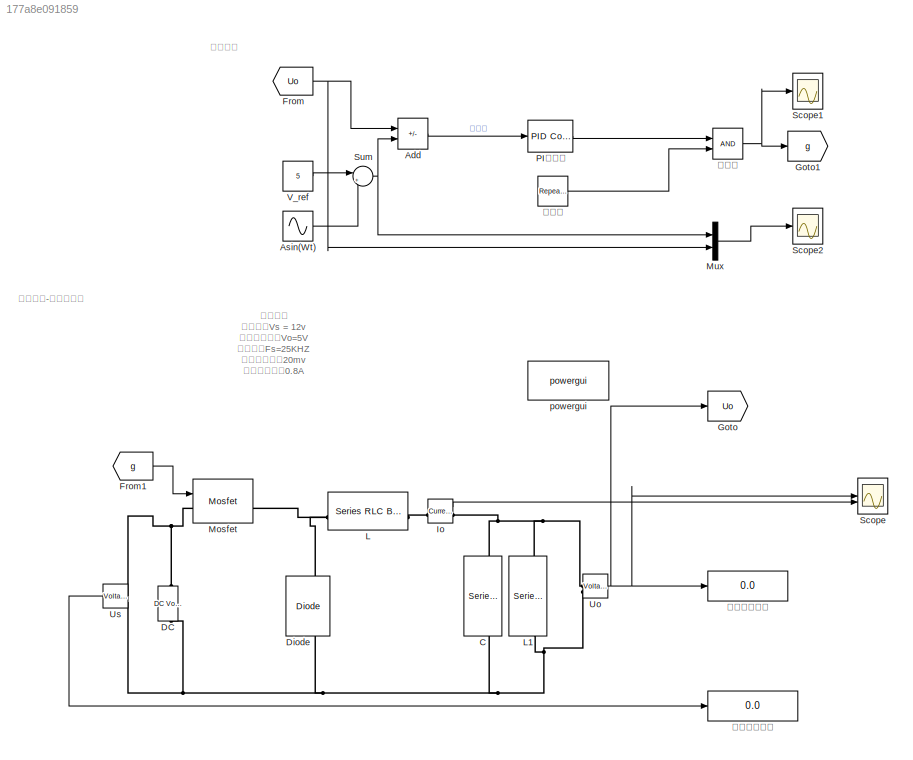
MODEL slx_177a8e091859
KIND model
CONFIG AbsTol = auto
CONFIG EnableMultiTasking = off
CONFIG FixedStep = auto
CONFIG MaxStep = auto
CONFIG MinStep = auto
CONFIG RelTol = 1e-3
CONFIG SampleTimeConstraint = Unconstrained
CONFIG SolverName = VariableStepAuto
CONFIG StartTime = 0.0
CONFIG StopTime = 0.01
BLOCK [Sum] Add
  IconShape = rectangular
  Inputs = -+
BLOCK [Sin] Asin(Wt) 
  Amplitude = 0.1
  Frequency = 1000
  SampleTime = 0
BLOCK [Reference] C  REF=spsSeriesRLCBranchLib/Series RLC Branch
  NameLocation = left
  SourceBlock = spsSeriesRLCBranchLib/Series RLC Branch
  SourceType = Series RLC Branch
BLOCK [Reference] DC  REF=spsDCVoltageSourceLib/DC Voltage Source
  SourceBlock = spsDCVoltageSourceLib/DC Voltage Source
  SourceType = DC Voltage Source
BLOCK [Reference] Diode  REF=spsDiodeLib/Diode
  NameLocation = right
  SourceBlock = spsDiodeLib/Diode
  SourceType = Diode
BLOCK [From] From
  GotoTag = Uo
BLOCK [From] From1
  GotoTag = g
BLOCK [Goto] Goto
  GotoTag = Uo
BLOCK [Goto] Goto1
  GotoTag = g
BLOCK [Reference] Io  REF=spsCurrentMeasurementLib/Current Measurement
  SourceBlock = spsCurrentMeasurementLib/Current Measurement
  SourceType = Current Measurement
  UserDataPersistent = on
BLOCK [Reference] L  REF=spsSeriesRLCBranchLib/Series RLC Branch
  SourceBlock = spsSeriesRLCBranchLib/Series RLC Branch
  SourceType = Series RLC Branch
BLOCK [Reference] L1  REF=spsSeriesRLCBranchLib/Series RLC Branch
  NameLocation = left
  SourceBlock = spsSeriesRLCBranchLib/Series RLC Branch
  SourceType = Series RLC Branch
BLOCK [Reference] Mosfet  REF=spsMosfetLib/Mosfet
  LibrarySourceBlock = sps_lib/Power Electronics/Mosfet
  SourceBlock = spsMosfetLib/Mosfet
  SourceType = Mosfet
BLOCK [Mux] Mux
  DisplayOption = bar
  Inputs = 2
BLOCK [Reference] PI控制器  REF=slpidlib/PID Controller
  SourceBlock = slpidlib/PID Controller
  SourceType = PID 1dof
BLOCK [Scope] Scope
  Floating = off
  NumInputPorts = 2
  ScopeSpecificationString = Simulink.scopes.TimeScopeBlockCfg('CurrentConfiguration', extmgr.ConfigurationSet(extmgr.Configuration('Core','General UI',true,'FigureColor',[1 1 1],'DisplayFullSourceName',true),extmgr.Configuration('Core','Source UI',true),extmgr.Configuration('Sources','WiredSimulink',true,'DataLoggingVariableName','ScopeData1','SampleTime','0'),extmgr.Configuration('Visuals','Time Domain',true,'SerializedDisp...<+2795ch>
BLOCK [Scope] Scope1
  Floating = off
  NumInputPorts = 1
  ScopeSpecificationString = Simulink.scopes.TimeScopeBlockCfg('CurrentConfiguration', extmgr.ConfigurationSet(extmgr.Configuration('Core','General UI',true,'FigureColor',[1 1 1],'DisplayFullSourceName',true),extmgr.Configuration('Core','Source UI',true),extmgr.Configuration('Sources','WiredSimulink',true,'DataLoggingVariableName','ScopeData1','SampleTime','0'),extmgr.Configuration('Visuals','Time Domain',true,'SerializedDisp...<+2711ch>
BLOCK [Scope] Scope2
  Floating = off
  NumInputPorts = 1
  ScopeSpecificationString = Simulink.scopes.TimeScopeBlockCfg('CurrentConfiguration', extmgr.ConfigurationSet(extmgr.Configuration('Core','General UI',true,'FigureColor',[1 1 1],'DisplayFullSourceName',true),extmgr.Configuration('Core','Source UI',true),extmgr.Configuration('Sources','WiredSimulink',true,'DataLoggingVariableName','ScopeData2','SampleTime','0'),extmgr.Configuration('Visuals','Time Domain',true,'SerializedDisp...<+2744ch>
BLOCK [Sum] Sum
  Inputs = |++
BLOCK [Reference] Uo  REF=spsVoltageMeasurementLib/Voltage Measurement
  SourceBlock = spsVoltageMeasurementLib/Voltage Measurement
  SourceType = Voltage Measurement
  UserDataPersistent = on
BLOCK [Reference] Us  REF=spsVoltageMeasurementLib/Voltage Measurement
  NameLocation = left
  SourceBlock = spsVoltageMeasurementLib/Voltage Measurement
  SourceType = Voltage Measurement
  UserDataPersistent = on
BLOCK [Constant] V_ref
  Value = 5
BLOCK [Reference] powergui  REF=sps_lib/powergui
  LibrarySourceBlock = sps_lib/powergui
  Priority = 1
  SourceBlock = sps_lib/powergui
  SourceType = PSB option menu block
BLOCK [Reference] 三角波  REF=simulink/Sources/Repeating
Sequence
  SourceBlock = simulink/Sources/Repeating\nSequence
  SourceType = Repeating table
BLOCK [RelationalOperator] 比较器
  InputSameDT = off
  OutDataTypeStr = boolean
  RndMeth = Simplest
BLOCK [Display] 直流输入电压
  Decimation = 1
BLOCK [Display] 直流输出电压
  Decimation = 1
ANNOTATION (root): 设计要求 输入电压Vs = 12v 输出电压等于Vo=5V 开关频率Fs=25KHZ 电容电压波动20mv 电感电流波动0.8A
ANNOTATION (root): 控制回路
ANNOTATION (root): 控制对象-主拓扑电路
LINE Add:1 -> PI控制器:1
LINE Asin(Wt) :1 -> Sum:2
LINE From1:1 -> Mosfet:1
NET From:1 -> Add:1, Mux:2
LINE Io:1 -> Scope:2
LINE Mux:1 -> Scope2:1
LINE PI控制器:1 -> 比较器:1
NET Sum:1 -> Add:2, Mux:1
NET Uo:1 -> Goto:1, Scope:1, 直流输出电压:1
LINE Us:1 -> 直流输入电压:1
LINE V_ref:1 -> Sum:1
LINE 三角波:1 -> 比较器:2
NET 比较器:1 -> Goto1:1, Scope1:1
PNET net1: C:LConn1 -- Io:RConn1 -- L1:LConn1 -- Uo:LConn1
PNET net2: C:RConn1 -- DC:LConn1 -- Diode:LConn1 -- L1:RConn1 -- Uo:LConn2 -- Us:LConn2
PNET net3: DC:RConn1 -- Mosfet:LConn1 -- Us:LConn1
PNET net4: Diode:RConn1 -- L:LConn1 -- Mosfet:RConn1
PLINE Io:LConn1 -- L:RConn1
note: NET lines group one-source signal fan-out (src -> all destinations, sorted); 1:1 wires keep LINE; PNET lines group multi-terminal physical nets as a canonical sorted terminal list (undirected conserving connections); 2-terminal nets keep the pairwise PLINE form
